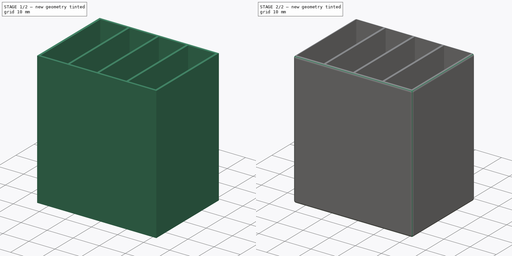
[diagram: build sequence overview — one tinted view per stage of 2, left to right]
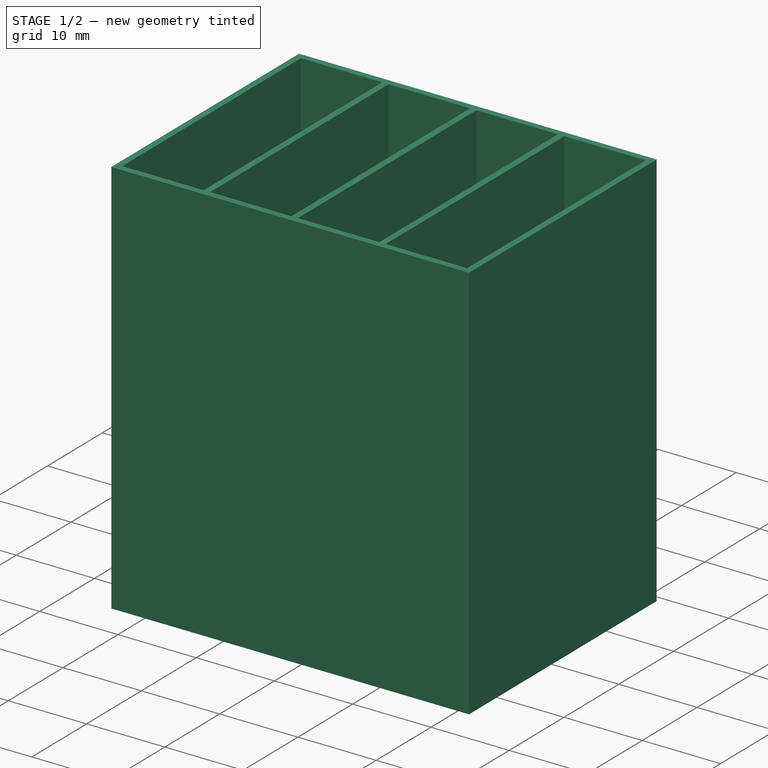
[diagram: stage 1 of 2 — iso view after this stage's code; geometry added in this stage tinted green]
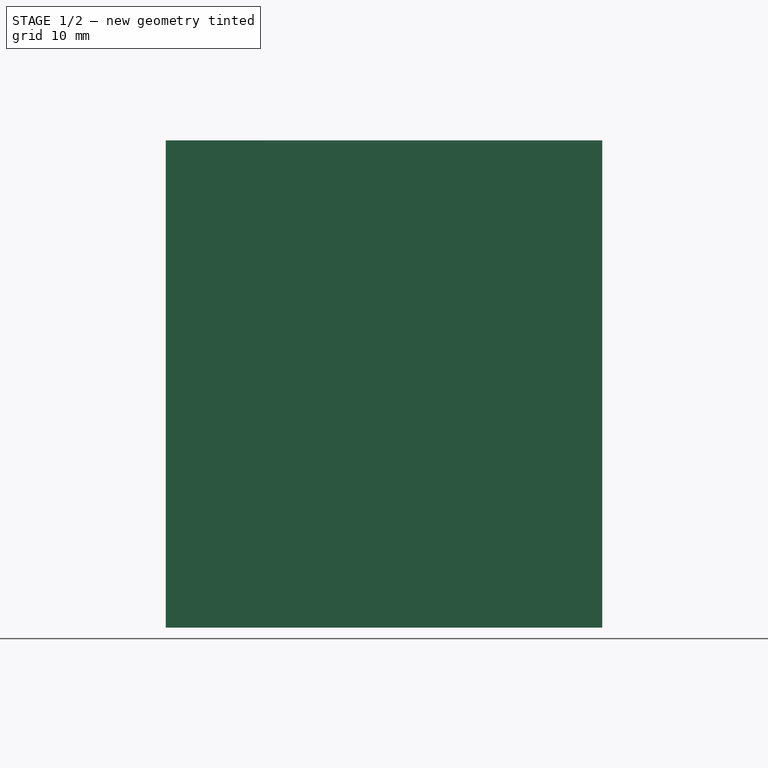
[diagram: stage 1 of 2 — front view after this stage's code; geometry added in this stage tinted green]
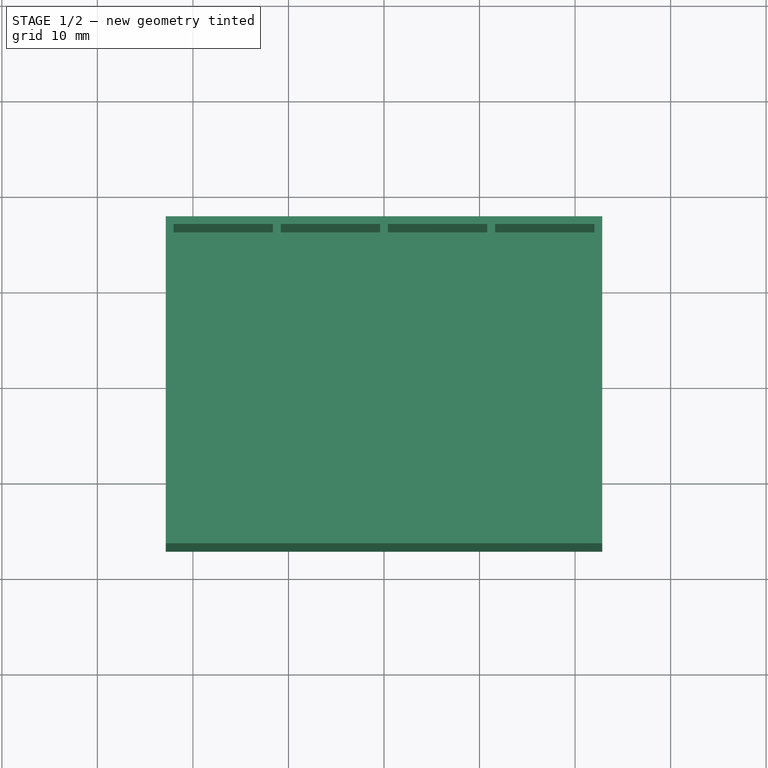
[diagram: stage 1 of 2 — top view after this stage's code; geometry added in this stage tinted green]
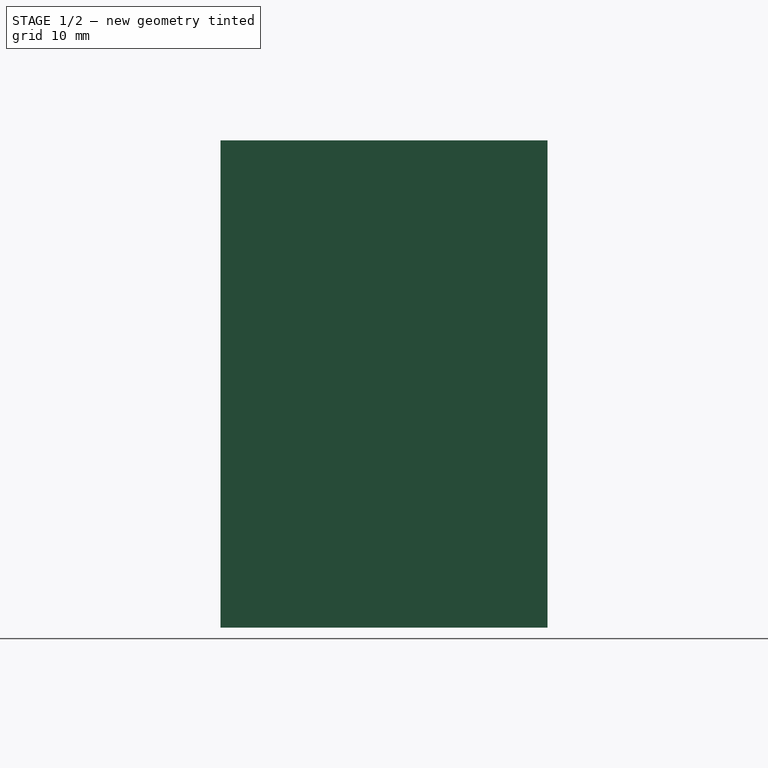
[diagram: stage 1 of 2 — right view after this stage's code; geometry added in this stage tinted green]
FCSTD DOCUMENT  (FreeCAD 0.16R6712 (Git))
Label: TO220Holder
License: All rights reserved
LicenseURL: http://en.wikipedia.org/wiki/All_rights_reserved
objects: Sketcher::SketchObject×2, PartDesign::Pad×2, Spreadsheet::Sheet×2, PartDesign::Fillet×1
note: 7 computed .brp shape members not serialized (recipe doc carries the construction recipe); baked Part::Feature solids carry a one-line shape summary decoded from their .brp

FEATURE [Sketcher::SketchObject] Sketch
  expr: Constraints[9] = Calc.Height
  expr: Constraints[8] = Calc.Width
  sketch-geometry (4):
    g0: LineSegment StartX=-22.85 StartY=17.12 StartZ=0 EndX=22.85 EndY=17.12 EndZ=0
    g1: LineSegment StartX=22.85 StartY=17.12 StartZ=0 EndX=22.85 EndY=-17.12 EndZ=0
    g2: LineSegment StartX=22.85 StartY=-17.12 StartZ=0 EndX=-22.85 EndY=-17.12 EndZ=0
    g3: LineSegment StartX=-22.85 StartY=-17.12 StartZ=0 EndX=-22.85 EndY=17.12 EndZ=0
  constraints (11):
    c: Coincident(g0,g1)
    c: Coincident(g1,g2)
    c: Coincident(g2,g3)
    c: Coincident(g3,g0)
    c: Horizontal(g0)
    c: Horizontal(g2)
    c: Vertical(g1)
    c: Vertical(g3)
    c: DistanceX(g0,g0) = 45.7
    c: DistanceY(g3,g3) = 34.24
    c: Symmetric(g0,g1,g-1)
FEATURE [PartDesign::Pad] Pad
  Length = 0.82
  Length2 = 100
  Sketch = -> Sketch
  Type = 0
  expr: Length = Data.WallThickness
FEATURE [Spreadsheet::Sheet] Spreadsheet  label="Data"
  cells = B2=CellWidth; C2(CellWidth)=10.4; B3=CellHeight; C3(CellHeight)=32.6; B4=BoxHeight; C4(BoxHeight)=51; B5=WallThickness; C5(WallThickness)=0.82; B6=XCount; C6(XCount)=4; B7=YCount; C7(YCount)=1
FEATURE [Spreadsheet::Sheet] Spreadsheet001  label="Calc"
  cells = B2=Width; C2(Width)==Data.WallThickness + (Data.CellWidth + Data.WallThickness) * Data.XCount; B3=Height; C3(Height)==Data.WallThickness + (Data.CellHeight + Data.WallThickness) * Data.YCount
FEATURE [Sketcher::SketchObject] Sketch001
  Placement = pos=(0,0,0.82) rot=(0,0,1;0rad)
  Support = -> Pad [Face6]
  expr: Constraints[43] = Data.CellWidth
  expr: Constraints[9] = Calc.Height
  expr: Constraints[44] = Data.CellHeight
  expr: Constraints[8] = Calc.Width
  sketch-geometry (26):
    g0: LineSegment StartX=-22.85 StartY=17.12 StartZ=0 EndX=22.85 EndY=17.12 EndZ=0
    g1: LineSegment StartX=22.85 StartY=17.12 StartZ=0 EndX=22.85 EndY=-17.12 EndZ=0
    g2: LineSegment StartX=22.85 StartY=-17.12 StartZ=0 EndX=-22.85 EndY=-17.12 EndZ=0
    g3: LineSegment StartX=-22.85 StartY=-17.12 StartZ=0 EndX=-22.85 EndY=17.12 EndZ=0
    g4: LineSegment StartX=-22.03 StartY=16.3 StartZ=0 EndX=-11.63 EndY=16.3 EndZ=0
    g5: LineSegment StartX=-11.63 StartY=16.3 StartZ=0 EndX=-11.63 EndY=-16.3 EndZ=0
    g6: LineSegment StartX=-11.63 StartY=-16.3 StartZ=0 EndX=-22.03 EndY=-16.3 EndZ=0
    g7: LineSegment StartX=-22.03 StartY=-16.3 StartZ=0 EndX=-22.03 EndY=16.3 EndZ=0
    g8: LineSegment StartX=-10.81 StartY=16.3 StartZ=0 EndX=-0.41 EndY=16.3 EndZ=0
    g9: LineSegment StartX=-0.41 StartY=16.3 StartZ=0 EndX=-0.41 EndY=-16.3 EndZ=0
    g10: LineSegment StartX=-0.41 StartY=-16.3 StartZ=0 EndX=-10.81 EndY=-16.3 EndZ=0
    g11: LineSegment StartX=-10.81 StartY=-16.3 StartZ=0 EndX=-10.81 EndY=16.3 EndZ=0
    g12: LineSegment StartX=0.41 StartY=16.3 StartZ=0 EndX=10.81 EndY=16.3 EndZ=0
    g13: LineSegment StartX=10.81 StartY=16.3 StartZ=0 EndX=10.81 EndY=-16.3 EndZ=0
    g14: LineSegment StartX=10.81 StartY=-16.3 StartZ=0 EndX=0.41 EndY=-16.3 EndZ=0
    g15: LineSegment StartX=0.41 StartY=-16.3 StartZ=0 EndX=0.41 EndY=16.3 EndZ=0
    g16: LineSegment StartX=11.63 StartY=16.3 StartZ=0 EndX=22.03 EndY=16.3 EndZ=0
    g17: LineSegment StartX=22.03 StartY=16.3 StartZ=0 EndX=22.03 EndY=-16.3 EndZ=0
    g18: LineSegment StartX=22.03 StartY=-16.3 StartZ=0 EndX=11.63 EndY=-16.3 EndZ=0
    g19: LineSegment StartX=11.63 StartY=-16.3 StartZ=0 EndX=11.63 EndY=16.3 EndZ=0
    g20: LineSegment [constr] StartX=-22.03 StartY=16.3 StartZ=0 EndX=-22.85 EndY=16.3 EndZ=0
    g21: LineSegment [constr] StartX=-11.63 StartY=16.3 StartZ=0 EndX=-10.81 EndY=16.3 EndZ=0
    g22: LineSegment [constr] StartX=-0.41 StartY=16.3 StartZ=0 EndX=0.41 EndY=16.3 EndZ=0
    g23: LineSegment [constr] StartX=10.81 StartY=16.3 StartZ=0 EndX=11.63 EndY=16.3 EndZ=0
    g24: LineSegment [constr] StartX=22.03 StartY=16.3 StartZ=0 EndX=22.85 EndY=16.3 EndZ=0
    g25: LineSegment [constr] StartX=-22.03 StartY=16.3 StartZ=0 EndX=-22.03 EndY=17.12 EndZ=0
  constraints (74):
    c: Coincident(g0,g1)
    c: Coincident(g1,g2)
    c: Coincident(g2,g3)
    c: Coincident(g3,g0)
    c: Horizontal(g0)
    c: Horizontal(g2)
    c: Vertical(g1)
    c: Vertical(g3)
    c: DistanceX(g0,g0) = 45.7
    c: DistanceY(g3,g3) = 34.24
    c: Symmetric(g0,g1,g-1)
    c: Coincident(g4,g5)
    c: Coincident(g5,g6)
    c: Coincident(g6,g7)
    c: Coincident(g7,g4)
    c: Horizontal(g4)
    c: Horizontal(g6)
    c: Vertical(g5)
    c: Vertical(g7)
    c: Coincident(g8,g9)
    c: Coincident(g9,g10)
    c: Coincident(g10,g11)
    c: Coincident(g11,g8)
    c: Horizontal(g8)
    c: Horizontal(g10)
    c: Vertical(g9)
    c: Vertical(g11)
    c: Coincident(g12,g13)
    c: Coincident(g13,g14)
    c: Coincident(g14,g15)
    c: Coincident(g15,g12)
    c: Horizontal(g12)
    c: Horizontal(g14)
    c: Vertical(g13)
    c: Vertical(g15)
    c: Coincident(g16,g17)
    c: Coincident(g17,g18)
    c: Coincident(g18,g19)
    c: Coincident(g19,g16)
    c: Horizontal(g16)
    c: Horizontal(g18)
    c: Vertical(g17)
    c: Vertical(g19)
    c: DistanceX(g4,g4) = 10.4
    c: DistanceY(g7,g7) = 32.6
    c: Equal(g7,g11)
    c: Equal(g11,g15)
    c: Equal(g15,g19)
    c: Equal(g4,g8)
    c: Equal(g8,g12)
    c: Equal(g12,g16)
    c: Coincident(g20,g4)
    c: PointOnObject(g20,g3)
    c: Horizontal(g20)
    c: Coincident(g21,g4)
    c: Coincident(g21,g8)
    c: Horizontal(g21)
    c: Coincident(g22,g8)
    c: Coincident(g22,g12)
    c: Horizontal(g22)
    c: Coincident(g23,g12)
    c: Coincident(g23,g16)
    c: Horizontal(g23)
    c: Coincident(g24,g16)
    c: PointOnObject(g24,g1)
    c: Horizontal(g24)
    c: Coincident(g25,g4)
    c: PointOnObject(g25,g0)
    c: Vertical(g25)
    c: Equal(g20,g25)
    c: Equal(g25,g21)
    c: Equal(g21,g22)
    c: Equal(g22,g23)
    c: Equal(g23,g24)
FEATURE [PartDesign::Pad] Pad001
  Length = 50.18
  Length2 = 100
  Sketch = -> Sketch001
  Type = 0
  expr: Length = Data.BoxHeight - Data.WallThickness
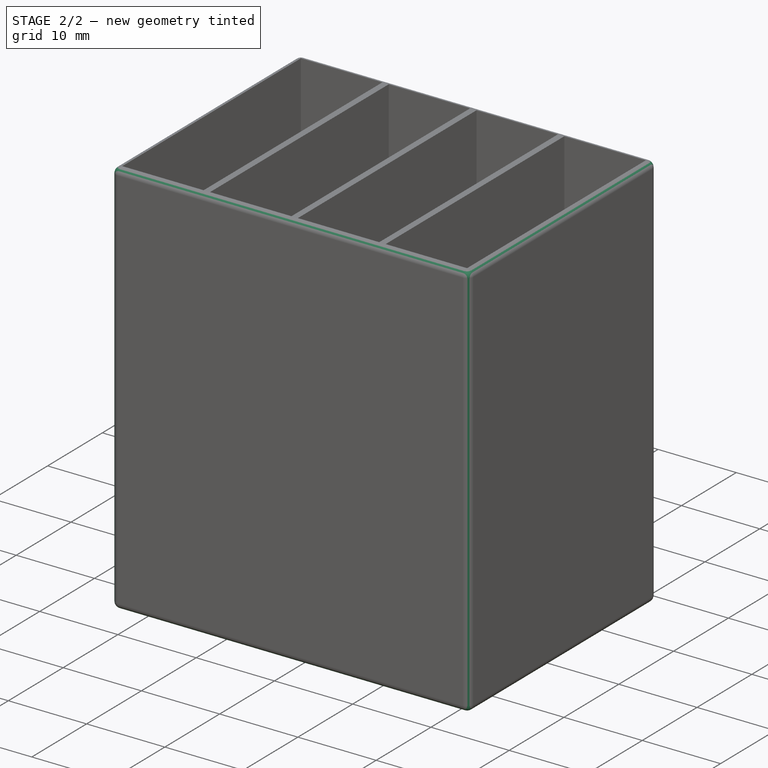
[diagram: stage 2 of 2 — iso view after this stage's code; geometry added in this stage tinted green]
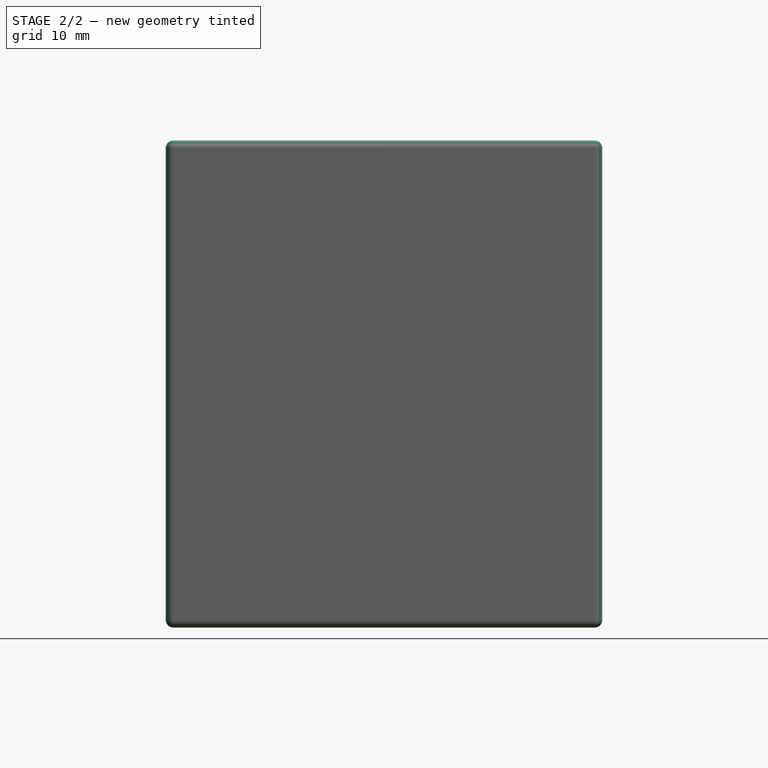
[diagram: stage 2 of 2 — front view after this stage's code; geometry added in this stage tinted green]
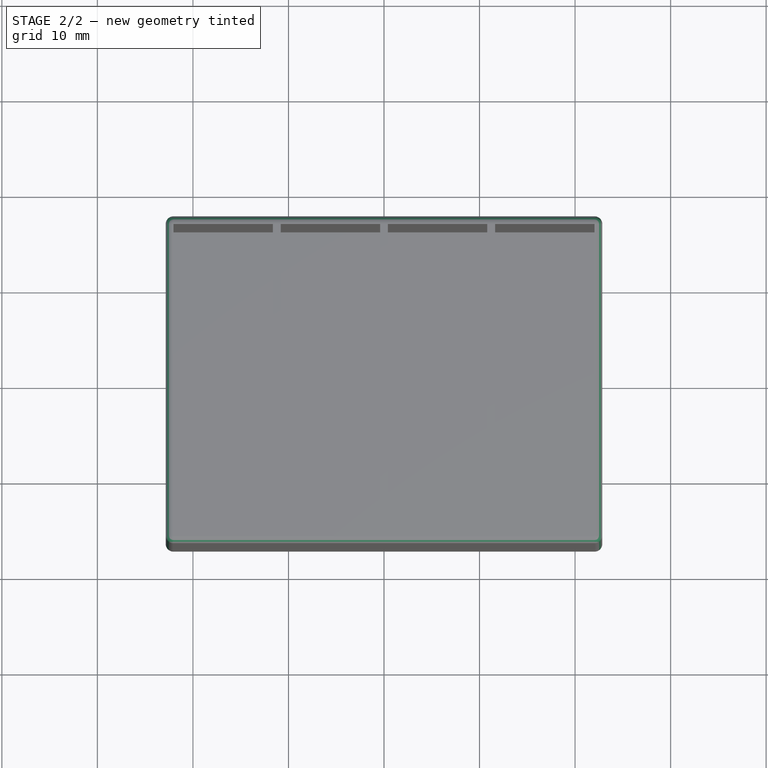
[diagram: stage 2 of 2 — top view after this stage's code; geometry added in this stage tinted green]
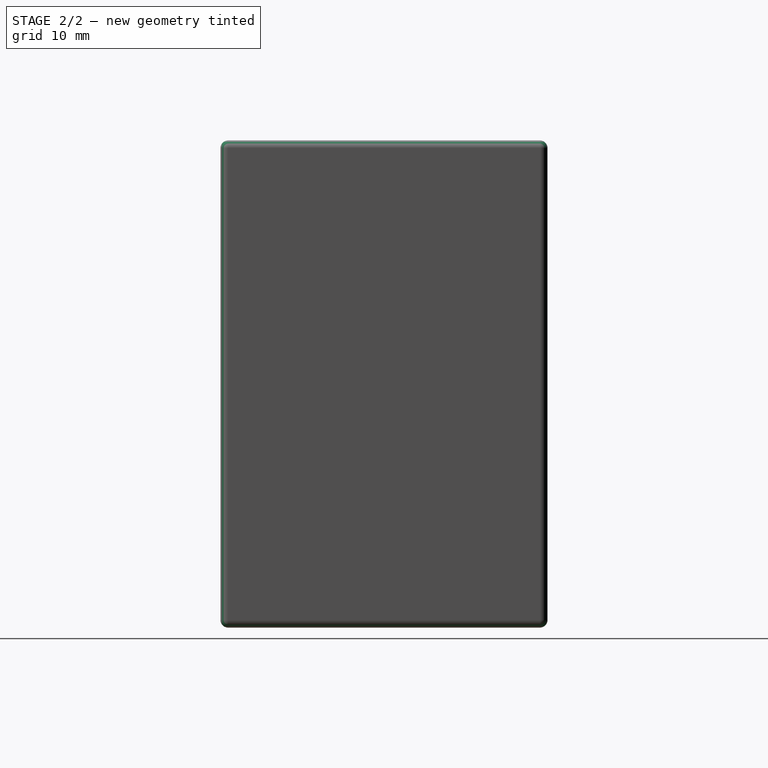
[diagram: stage 2 of 2 — right view after this stage's code; geometry added in this stage tinted green]
FEATURE [PartDesign::Fillet] Fillet
  Base = -> Pad001 [Edge13,Edge17,Edge15,Edge19,Edge3,Edge2,Edge4,Edge1,Edge14,Edge20,Edge18,Edge16]
  Radius = 0.81
  expr: Radius = Data.WallThickness - 0.01
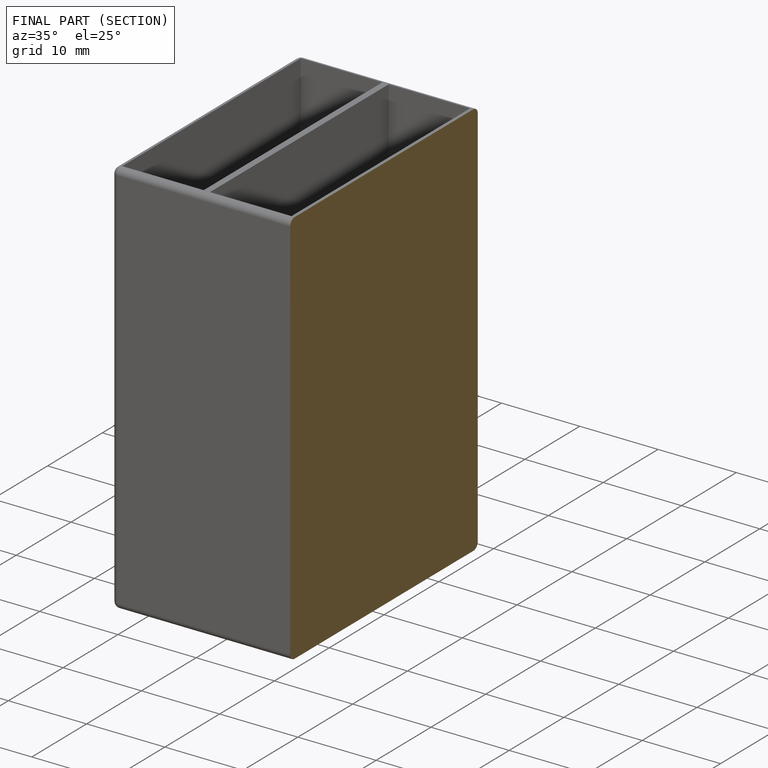
[diagram: finished part — half-section view (interior)]
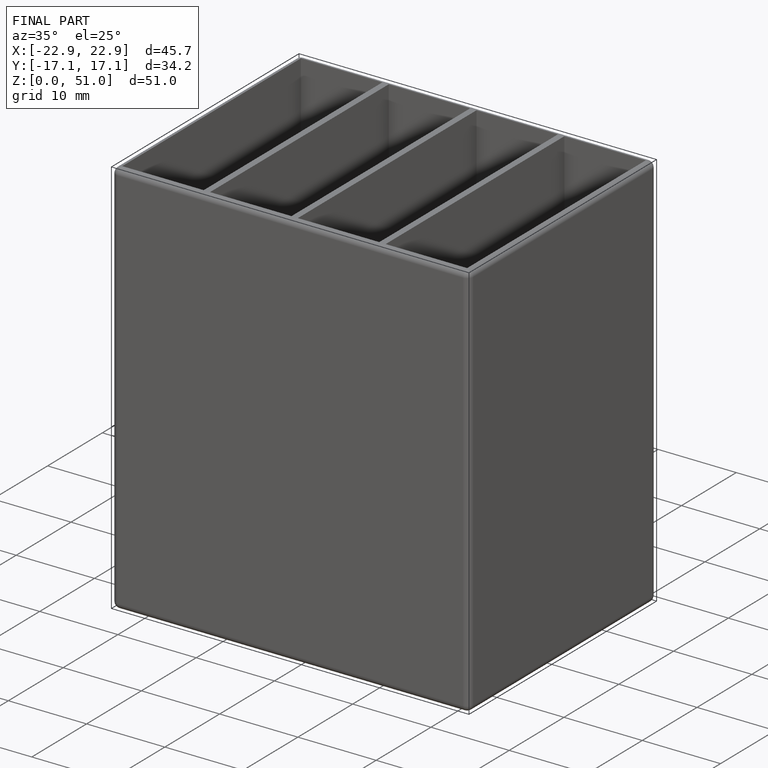
[diagram: finished part — iso view with bounding-box wireframe]
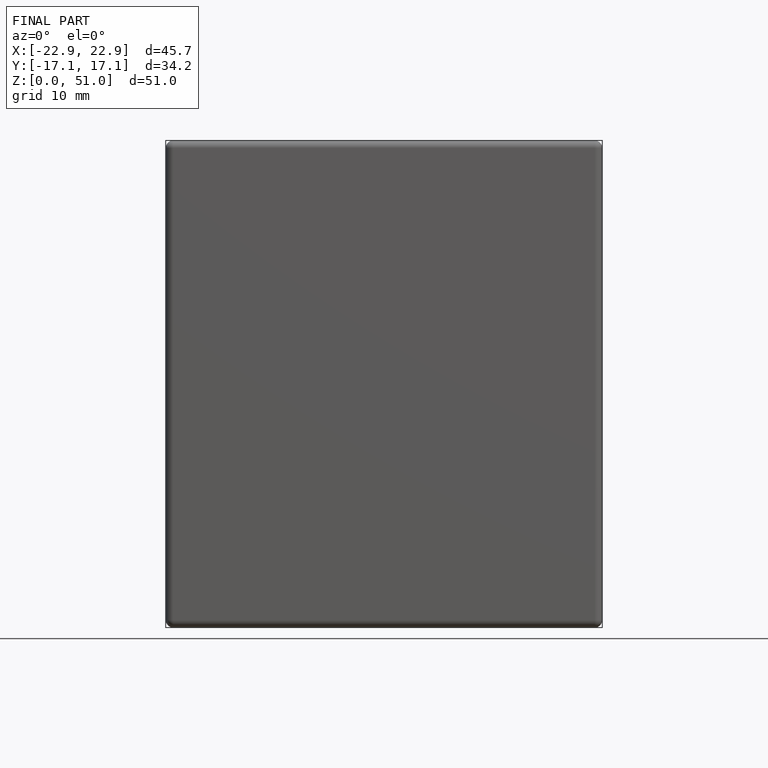
[diagram: finished part — front view with bounding-box wireframe]
